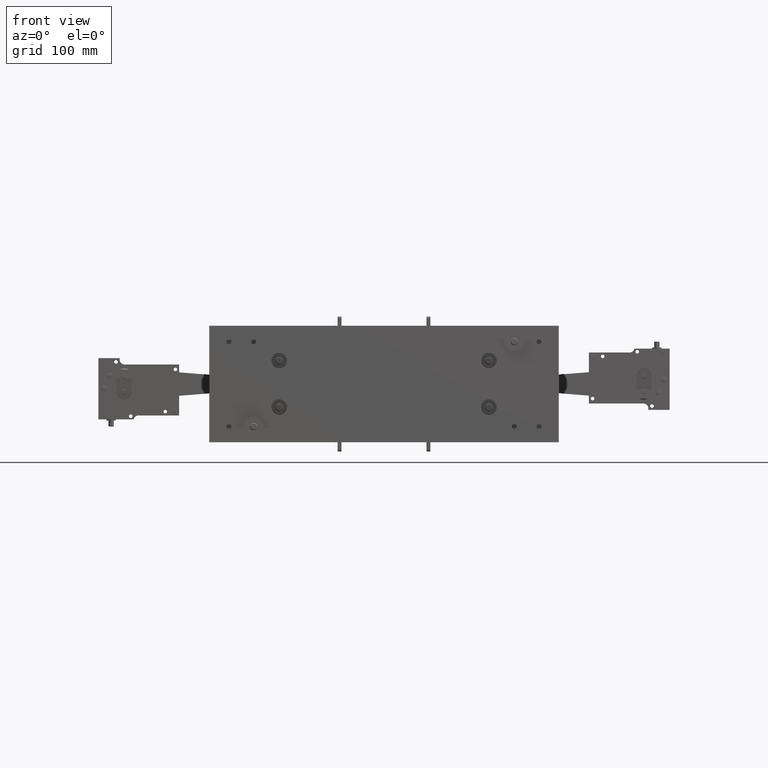
[diagram: clean part render]
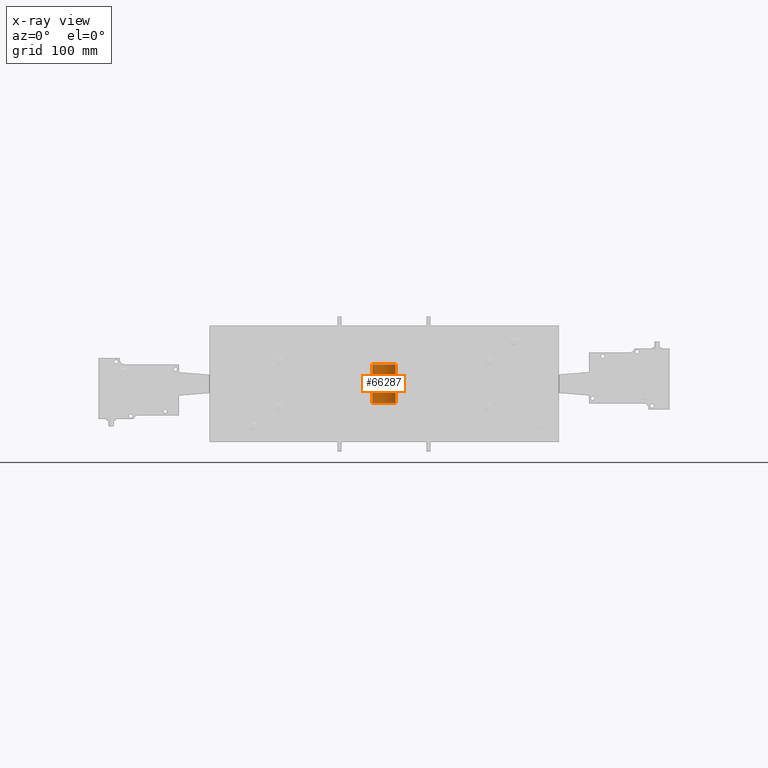
[diagram: x-ray — body ghosted, one internal face saturated and labeled with its STEP entity id]
A machine part, front view, then the same camera in x-ray: the body is ghosted and one INTERNAL B-rep face — a face not visible from any outside direction — is saturated and labeled: STEP entity #66287.
In plain terms, the highlighted cylindrical surface (edge-blend (fillet) strip) has radius 14.9225 mm, axis along (0, 0, 1).
Its self-contained STEP definition (entity closure, byte-faithful):
#135 = VECTOR ( 'NONE', #8933, 39.37007874015748100 ) ;
#1216 = CARTESIAN_POINT ( 'NONE',  ( -0.5874999999999999100, 3.933519810154302700E-017, 0.9850000000000001000 ) ) ;
#1456 = DIRECTION ( 'NONE',  ( 5.551115123125782700E-017, 0.0000000000000000000, 1.000000000000000000 ) ) ;
#3756 = CARTESIAN_POINT ( 'NONE',  ( -0.5875000000000001300, 3.933519810154302700E-017, -0.9850000000000001000 ) ) ;
#3862 = EDGE_CURVE ( 'NONE', #59934, #13096, #15477, .T. ) ;
#3949 = DIRECTION ( 'NONE',  ( 5.551115123125782700E-017, 0.0000000000000000000, 1.000000000000000000 ) ) ;
#5080 = DIRECTION ( 'NONE',  ( 1.000000000000000000, 5.551115123125782700E-017, 0.0000000000000000000 ) ) ;
#8265 = ORIENTED_EDGE ( 'NONE', *, *, #60097, .T. ) ;
#8933 = DIRECTION ( 'NONE',  ( 5.551115123125782700E-017, 0.0000000000000000000, 1.000000000000000000 ) ) ;
#9375 = VERTEX_POINT ( 'NONE', #44276 ) ;
#9744 = CARTESIAN_POINT ( 'NONE',  ( 0.0000000000000000000, 0.0000000000000000000, 0.9850000000000001000 ) ) ;
#13096 = VERTEX_POINT ( 'NONE', #1216 ) ;
#15477 = LINE ( 'NONE', #3756, #135 ) ;
#16027 = VERTEX_POINT ( 'NONE', #42934 ) ;
#17970 = ORIENTED_EDGE ( 'NONE', *, *, #3862, .T. ) ;
#21959 = CARTESIAN_POINT ( 'NONE',  ( 0.5874999999999998000, 3.261280134836396800E-017, -0.9850000000000001000 ) ) ;
#23970 = EDGE_CURVE ( 'NONE', #16027, #13096, #41407, .T. ) ;
#26156 = CARTESIAN_POINT ( 'NONE',  ( -1.365923996832131600E-016, 0.0000000000000000000, -0.9850000000000001000 ) ) ;
#31379 = DIRECTION ( 'NONE',  ( 1.000000000000000000, 5.551115123125782700E-017, 0.0000000000000000000 ) ) ;
#33304 = ORIENTED_EDGE ( 'NONE', *, *, #23970, .F. ) ;
#34867 = CARTESIAN_POINT ( 'NONE',  ( -1.365923996832131600E-016, 0.0000000000000000000, -0.9850000000000001000 ) ) ;
#35997 = DIRECTION ( 'NONE',  ( 5.551115123125782700E-017, 0.0000000000000000000, 1.000000000000000000 ) ) ;
#37018 = FACE_OUTER_BOUND ( 'NONE', #39052, .T. ) ;
#38879 = CARTESIAN_POINT ( 'NONE',  ( -0.5875000000000001300, 3.933519810154303300E-017, -0.9850000000000001000 ) ) ;
#39052 = EDGE_LOOP ( 'NONE', ( #8265, #17970, #33304, #57702 ) ) ;
#39996 = DIRECTION ( 'NONE',  ( 1.000000000000000000, 5.551115123125782700E-017, 0.0000000000000000000 ) ) ;
#41298 = VECTOR ( 'NONE', #1456, 39.37007874015748100 ) ;
#41407 = CIRCLE ( 'NONE', #52100, 0.5874999999999999100 ) ;
#41457 = DIRECTION ( 'NONE',  ( 5.551115123125782700E-017, 0.0000000000000000000, 1.000000000000000000 ) ) ;
#42934 = CARTESIAN_POINT ( 'NONE',  ( 0.5874999999999999100, 3.261280134836396800E-017, 0.9850000000000001000 ) ) ;
#44276 = CARTESIAN_POINT ( 'NONE',  ( 0.5874999999999998000, 3.261280134836396800E-017, -0.9850000000000001000 ) ) ;
#45577 = CIRCLE ( 'NONE', #45728, 0.5874999999999999100 ) ;
#45728 = AXIS2_PLACEMENT_3D ( 'NONE', #34867, #3949, #39996 ) ;
#49100 = CYLINDRICAL_SURFACE ( 'NONE', #60259, 0.5874999999999999100 ) ;
#51913 = EDGE_CURVE ( 'NONE', #9375, #16027, #65452, .T. ) ;
#52100 = AXIS2_PLACEMENT_3D ( 'NONE', #9744, #35997, #5080 ) ;
#57702 = ORIENTED_EDGE ( 'NONE', *, *, #51913, .F. ) ;
#59934 = VERTEX_POINT ( 'NONE', #38879 ) ;
#60097 = EDGE_CURVE ( 'NONE', #9375, #59934, #45577, .T. ) ;
#60259 = AXIS2_PLACEMENT_3D ( 'NONE', #26156, #41457, #31379 ) ;
#65452 = LINE ( 'NONE', #21959, #41298 ) ;
#66287 = ADVANCED_FACE ( 'NONE', ( #37018 ), #49100, .T. ) ;